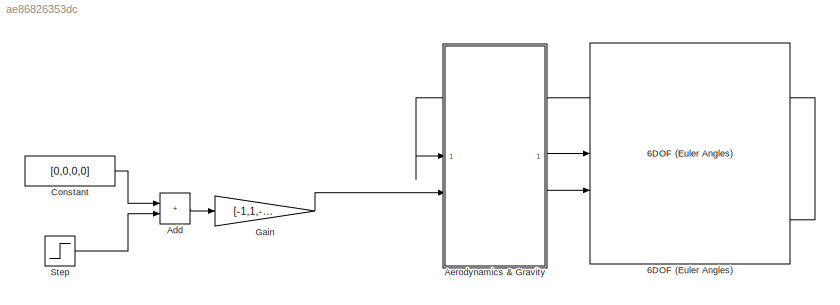
MODEL slx_ae86826353dc
KIND library
CONFIG AbsTol = auto
CONFIG EnableMultiTasking = off
CONFIG FixedStep = auto
CONFIG MaxStep = auto
CONFIG MinStep = auto
CONFIG RelTol = 1e-3
CONFIG SampleTimeConstraint = Unconstrained
CONFIG SolverName = VariableStepAuto
CONFIG StartTime = 0.0
CONFIG StopTime = 10.0
BLOCK [Reference] 6DOF (Euler Angles)  REF=shared6dof/6DOF (Euler Angles)
  LibrarySourceBlock = aerolib6dof2/6DOF (Euler Angles)
  SourceBlock = shared6dof/6DOF (Euler Angles)
  SourceType = 6DOF EoM (Body Axis)
BLOCK [Sum] Add
  IconShape = rectangular
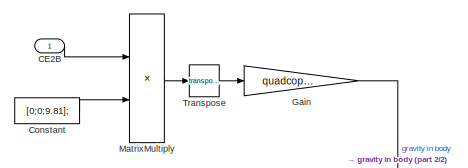
[diagram: Aerodynamics & Gravity - part 1/2, top center region]
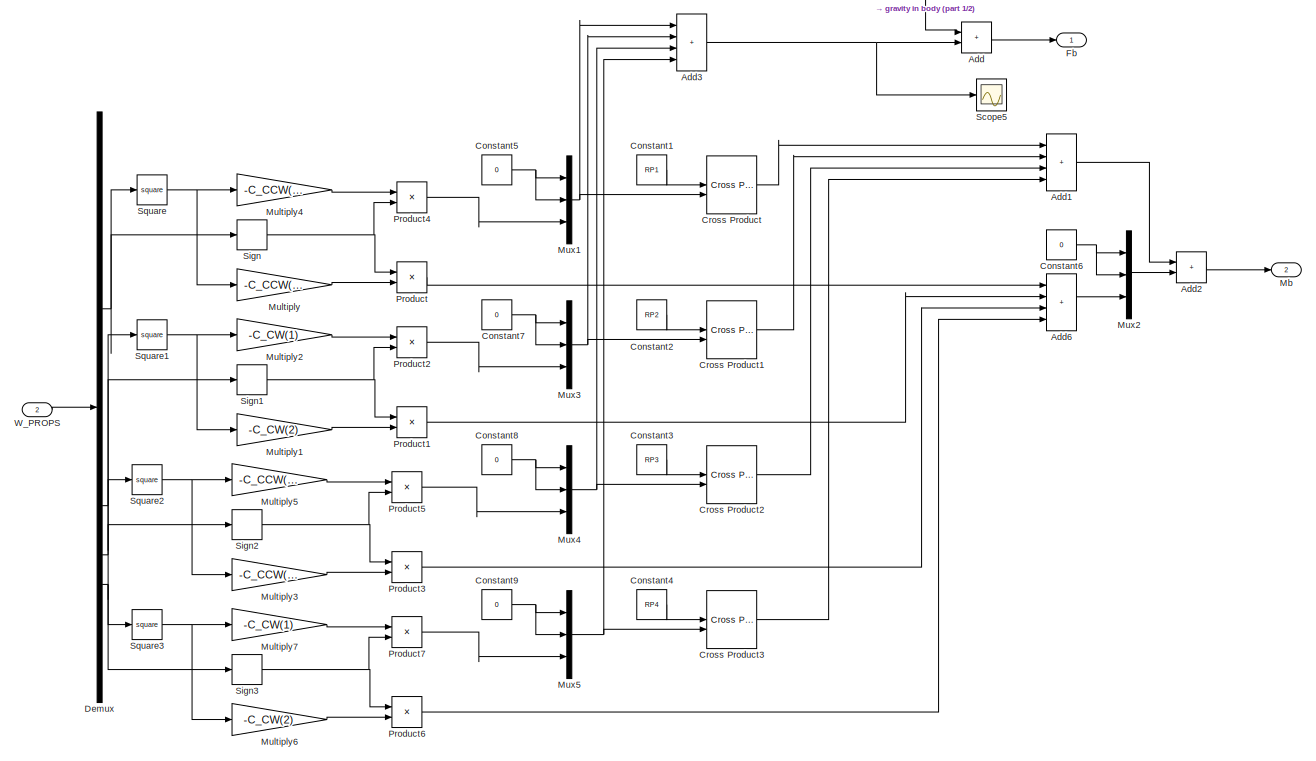
[diagram: Aerodynamics & Gravity - part 2/2, most of the canvas]
BLOCK [SubSystem] Aerodynamics & Gravity
BLOCK [Sum] Aerodynamics & Gravity/Add
  IconShape = rectangular
BLOCK [Sum] Aerodynamics & Gravity/Add1
  IconShape = rectangular
  Inputs = ++++
BLOCK [Sum] Aerodynamics & Gravity/Add2
  IconShape = rectangular
BLOCK [Sum] Aerodynamics & Gravity/Add3
  IconShape = rectangular
  Inputs = ++++
BLOCK [Sum] Aerodynamics & Gravity/Add6
  IconShape = rectangular
  Inputs = ++++
BLOCK [Inport] Aerodynamics & Gravity/CE2B
BLOCK [Constant] Aerodynamics & Gravity/Constant
  Value = [0;0;9.81];
BLOCK [Constant] Aerodynamics & Gravity/Constant1
  Value = RP1
BLOCK [Constant] Aerodynamics & Gravity/Constant2
  Value = RP2
BLOCK [Constant] Aerodynamics & Gravity/Constant3
  Value = RP3
BLOCK [Constant] Aerodynamics & Gravity/Constant4
  Value = RP4
BLOCK [Constant] Aerodynamics & Gravity/Constant5
  Value = 0
BLOCK [Constant] Aerodynamics & Gravity/Constant6
  Value = 0
BLOCK [Constant] Aerodynamics & Gravity/Constant7
  Value = 0
BLOCK [Constant] Aerodynamics & Gravity/Constant8
  Value = 0
BLOCK [Constant] Aerodynamics & Gravity/Constant9
  Value = 0
BLOCK [Reference] Aerodynamics & Gravity/Cross Product  REF=matrix_library/Cross Product
  LibrarySourceBlock = simulink/Matrix\nOperations/Cross Product
  SourceBlock = matrix_library/Cross Product
  SourceType = CrossProduct
BLOCK [Reference] Aerodynamics & Gravity/Cross Product1  REF=matrix_library/Cross Product
  LibrarySourceBlock = simulink/Matrix\nOperations/Cross Product
  SourceBlock = matrix_library/Cross Product
  SourceType = CrossProduct
BLOCK [Reference] Aerodynamics & Gravity/Cross Product2  REF=matrix_library/Cross Product
  LibrarySourceBlock = simulink/Matrix\nOperations/Cross Product
  SourceBlock = matrix_library/Cross Product
  SourceType = CrossProduct
BLOCK [Reference] Aerodynamics & Gravity/Cross Product3  REF=matrix_library/Cross Product
  LibrarySourceBlock = simulink/Matrix\nOperations/Cross Product
  SourceBlock = matrix_library/Cross Product
  SourceType = CrossProduct
BLOCK [Demux] Aerodynamics & Gravity/Demux
BLOCK [Outport] Aerodynamics & Gravity/Fb
BLOCK [Gain] Aerodynamics & Gravity/Gain
  Gain = quadcopter.m
BLOCK [Product] Aerodynamics & Gravity/MatrixMultiply
  Multiplication = Matrix(*)
BLOCK [Outport] Aerodynamics & Gravity/Mb
  Port = 2
BLOCK [Gain] Aerodynamics & Gravity/Multiply
  Gain = -C_CCW(2)
BLOCK [Gain] Aerodynamics & Gravity/Multiply1
  Gain = -C_CW(2)
BLOCK [Gain] Aerodynamics & Gravity/Multiply2
  Gain = -C_CW(1)
BLOCK [Gain] Aerodynamics & Gravity/Multiply3
  Gain = -C_CCW(2)
BLOCK [Gain] Aerodynamics & Gravity/Multiply4
  Gain = -C_CCW(1)
BLOCK [Gain] Aerodynamics & Gravity/Multiply5
  Gain = -C_CCW(1)
BLOCK [Gain] Aerodynamics & Gravity/Multiply6
  Gain = -C_CW(2)
BLOCK [Gain] Aerodynamics & Gravity/Multiply7
  Gain = -C_CW(1)
BLOCK [Mux] Aerodynamics & Gravity/Mux1
  DisplayOption = bar
  Inputs = 3
BLOCK [Mux] Aerodynamics & Gravity/Mux2
  DisplayOption = bar
  Inputs = 3
BLOCK [Mux] Aerodynamics & Gravity/Mux3
  DisplayOption = bar
  Inputs = 3
BLOCK [Mux] Aerodynamics & Gravity/Mux4
  DisplayOption = bar
  Inputs = 3
BLOCK [Mux] Aerodynamics & Gravity/Mux5
  DisplayOption = bar
  Inputs = 3
BLOCK [Product] Aerodynamics & Gravity/Product
BLOCK [Product] Aerodynamics & Gravity/Product1
BLOCK [Product] Aerodynamics & Gravity/Product2
BLOCK [Product] Aerodynamics & Gravity/Product3
BLOCK [Product] Aerodynamics & Gravity/Product4
BLOCK [Product] Aerodynamics & Gravity/Product5
BLOCK [Product] Aerodynamics & Gravity/Product6
BLOCK [Product] Aerodynamics & Gravity/Product7
BLOCK [Scope] Aerodynamics & Gravity/Scope5
  Floating = off
  NumInputPorts = 1
  ScopeSpecificationString = Simulink.scopes.TimeScopeBlockCfg('CurrentConfiguration', extmgr.ConfigurationSet(extmgr.Configuration('Core','General UI',true),extmgr.Configuration('Core','Source UI',true),extmgr.Configuration('Sources','WiredSimulink',true,'DataLoggingVariableName','ScopeData7'),extmgr.Configuration('Visuals','Time Domain',true,'SerializedDisplays',{struct('MinYLimReal','-0.88116','MaxYLimReal','0.09791','YLab...<+1383ch>
BLOCK [Signum] Aerodynamics & Gravity/Sign
BLOCK [Signum] Aerodynamics & Gravity/Sign1
BLOCK [Signum] Aerodynamics & Gravity/Sign2
BLOCK [Signum] Aerodynamics & Gravity/Sign3
BLOCK [Math] Aerodynamics & Gravity/Square
  Operator = square
BLOCK [Math] Aerodynamics & Gravity/Square1
  Operator = square
BLOCK [Math] Aerodynamics & Gravity/Square2
  Operator = square
BLOCK [Math] Aerodynamics & Gravity/Square3
  Operator = square
BLOCK [Math] Aerodynamics & Gravity/Transpose
  Operator = transpose
BLOCK [Inport] Aerodynamics & Gravity/W_PROPS
  Port = 2
BLOCK [Constant] Constant
  Value = [0,0,0,0]
BLOCK [Gain] Gain
  Gain = [-1,1,-1,1]
BLOCK [Step] Step
  After = 186
  SampleTime = 0
  Time = 0
LINE 6DOF (Euler Angles):4 -> Aerodynamics & Gravity:1
LINE Add:1 -> Gain:1
LINE Aerodynamics & Gravity/Add1:1 -> Aerodynamics & Gravity/Add2:1
LINE Aerodynamics & Gravity/Add2:1 -> Aerodynamics & Gravity/Mb:1
NET Aerodynamics & Gravity/Add3:1 -> Aerodynamics & Gravity/Add:2, Aerodynamics & Gravity/Scope5:1
LINE Aerodynamics & Gravity/Add6:1 -> Aerodynamics & Gravity/Mux2:3
LINE Aerodynamics & Gravity/Add:1 -> Aerodynamics & Gravity/Fb:1
LINE Aerodynamics & Gravity/CE2B:1 -> Aerodynamics & Gravity/MatrixMultiply:1
LINE Aerodynamics & Gravity/Constant1:1 -> Aerodynamics & Gravity/Cross Product:1
LINE Aerodynamics & Gravity/Constant2:1 -> Aerodynamics & Gravity/Cross Product1:1
LINE Aerodynamics & Gravity/Constant3:1 -> Aerodynamics & Gravity/Cross Product2:1
LINE Aerodynamics & Gravity/Constant4:1 -> Aerodynamics & Gravity/Cross Product3:1
NET Aerodynamics & Gravity/Constant5:1 -> Aerodynamics & Gravity/Mux1:1, Aerodynamics & Gravity/Mux1:2
NET Aerodynamics & Gravity/Constant6:1 -> Aerodynamics & Gravity/Mux2:1, Aerodynamics & Gravity/Mux2:2
NET Aerodynamics & Gravity/Constant7:1 -> Aerodynamics & Gravity/Mux3:1, Aerodynamics & Gravity/Mux3:2
NET Aerodynamics & Gravity/Constant8:1 -> Aerodynamics & Gravity/Mux4:1, Aerodynamics & Gravity/Mux4:2
NET Aerodynamics & Gravity/Constant9:1 -> Aerodynamics & Gravity/Mux5:1, Aerodynamics & Gravity/Mux5:2
LINE Aerodynamics & Gravity/Constant:1 -> Aerodynamics & Gravity/MatrixMultiply:2
LINE Aerodynamics & Gravity/Cross Product1:1 -> Aerodynamics & Gravity/Add1:2
LINE Aerodynamics & Gravity/Cross Product2:1 -> Aerodynamics & Gravity/Add1:3
LINE Aerodynamics & Gravity/Cross Product3:1 -> Aerodynamics & Gravity/Add1:4
LINE Aerodynamics & Gravity/Cross Product:1 -> Aerodynamics & Gravity/Add1:1
NET Aerodynamics & Gravity/Demux:1 -> Aerodynamics & Gravity/Sign:1, Aerodynamics & Gravity/Square:1
NET Aerodynamics & Gravity/Demux:2 -> Aerodynamics & Gravity/Sign1:1, Aerodynamics & Gravity/Square1:1
NET Aerodynamics & Gravity/Demux:3 -> Aerodynamics & Gravity/Sign2:1, Aerodynamics & Gravity/Square2:1
NET Aerodynamics & Gravity/Demux:4 -> Aerodynamics & Gravity/Sign3:1, Aerodynamics & Gravity/Square3:1
LINE Aerodynamics & Gravity/Gain:1 -> Aerodynamics & Gravity/Add:1
LINE Aerodynamics & Gravity/MatrixMultiply:1 -> Aerodynamics & Gravity/Transpose:1
LINE Aerodynamics & Gravity/Multiply1:1 -> Aerodynamics & Gravity/Product1:2
LINE Aerodynamics & Gravity/Multiply2:1 -> Aerodynamics & Gravity/Product2:1
LINE Aerodynamics & Gravity/Multiply3:1 -> Aerodynamics & Gravity/Product3:2
LINE Aerodynamics & Gravity/Multiply4:1 -> Aerodynamics & Gravity/Product4:1
LINE Aerodynamics & Gravity/Multiply5:1 -> Aerodynamics & Gravity/Product5:1
LINE Aerodynamics & Gravity/Multiply6:1 -> Aerodynamics & Gravity/Product6:2
LINE Aerodynamics & Gravity/Multiply7:1 -> Aerodynamics & Gravity/Product7:1
LINE Aerodynamics & Gravity/Multiply:1 -> Aerodynamics & Gravity/Product:2
NET Aerodynamics & Gravity/Mux1:1 -> Aerodynamics & Gravity/Add3:1, Aerodynamics & Gravity/Cross Product:2
LINE Aerodynamics & Gravity/Mux2:1 -> Aerodynamics & Gravity/Add2:2
NET Aerodynamics & Gravity/Mux3:1 -> Aerodynamics & Gravity/Add3:2, Aerodynamics & Gravity/Cross Product1:2
NET Aerodynamics & Gravity/Mux4:1 -> Aerodynamics & Gravity/Add3:3, Aerodynamics & Gravity/Cross Product2:2
NET Aerodynamics & Gravity/Mux5:1 -> Aerodynamics & Gravity/Add3:4, Aerodynamics & Gravity/Cross Product3:2
LINE Aerodynamics & Gravity/Product1:1 -> Aerodynamics & Gravity/Add6:2
LINE Aerodynamics & Gravity/Product2:1 -> Aerodynamics & Gravity/Mux3:3
LINE Aerodynamics & Gravity/Product3:1 -> Aerodynamics & Gravity/Add6:3
LINE Aerodynamics & Gravity/Product4:1 -> Aerodynamics & Gravity/Mux1:3
LINE Aerodynamics & Gravity/Product5:1 -> Aerodynamics & Gravity/Mux4:3
LINE Aerodynamics & Gravity/Product6:1 -> Aerodynamics & Gravity/Add6:4
LINE Aerodynamics & Gravity/Product7:1 -> Aerodynamics & Gravity/Mux5:3
LINE Aerodynamics & Gravity/Product:1 -> Aerodynamics & Gravity/Add6:1
NET Aerodynamics & Gravity/Sign1:1 -> Aerodynamics & Gravity/Product1:1, Aerodynamics & Gravity/Product2:2
NET Aerodynamics & Gravity/Sign2:1 -> Aerodynamics & Gravity/Product3:1, Aerodynamics & Gravity/Product5:2
NET Aerodynamics & Gravity/Sign3:1 -> Aerodynamics & Gravity/Product6:1, Aerodynamics & Gravity/Product7:2
NET Aerodynamics & Gravity/Sign:1 -> Aerodynamics & Gravity/Product4:2, Aerodynamics & Gravity/Product:1
NET Aerodynamics & Gravity/Square1:1 -> Aerodynamics & Gravity/Multiply1:1, Aerodynamics & Gravity/Multiply2:1
NET Aerodynamics & Gravity/Square2:1 -> Aerodynamics & Gravity/Multiply3:1, Aerodynamics & Gravity/Multiply5:1
NET Aerodynamics & Gravity/Square3:1 -> Aerodynamics & Gravity/Multiply6:1, Aerodynamics & Gravity/Multiply7:1
NET Aerodynamics & Gravity/Square:1 -> Aerodynamics & Gravity/Multiply4:1, Aerodynamics & Gravity/Multiply:1
LINE Aerodynamics & Gravity/Transpose:1 -> Aerodynamics & Gravity/Gain:1
LINE Aerodynamics & Gravity/W_PROPS:1 -> Aerodynamics & Gravity/Demux:1
LINE Aerodynamics & Gravity:1 -> 6DOF (Euler Angles):1
LINE Aerodynamics & Gravity:2 -> 6DOF (Euler Angles):2
LINE Constant:1 -> Add:1
LINE Gain:1 -> Aerodynamics & Gravity:2
LINE Step:1 -> Add:2
note: NET lines group one-source signal fan-out (src -> all destinations, sorted); 1:1 wires keep LINE
